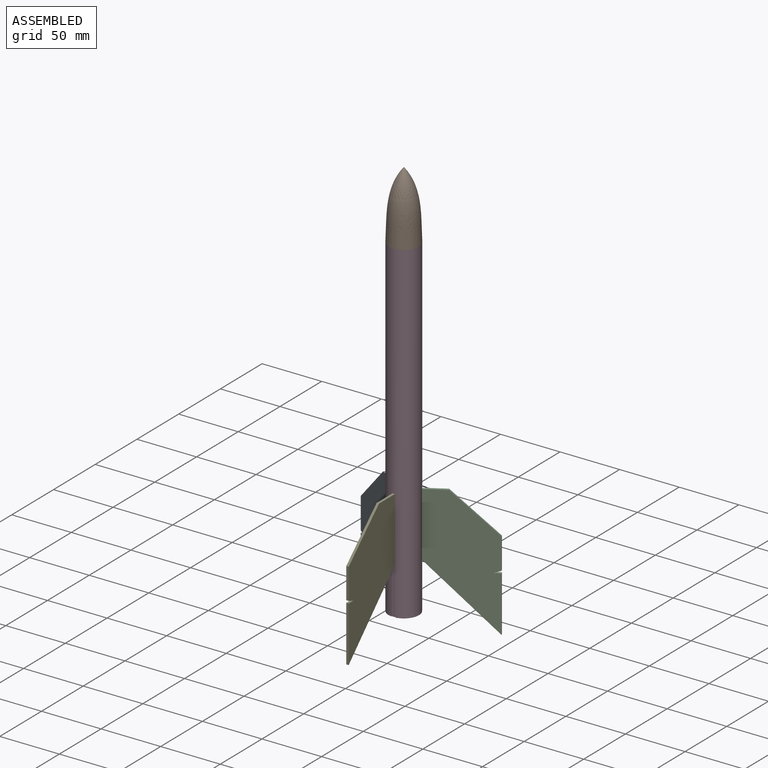
[diagram: assembled view]
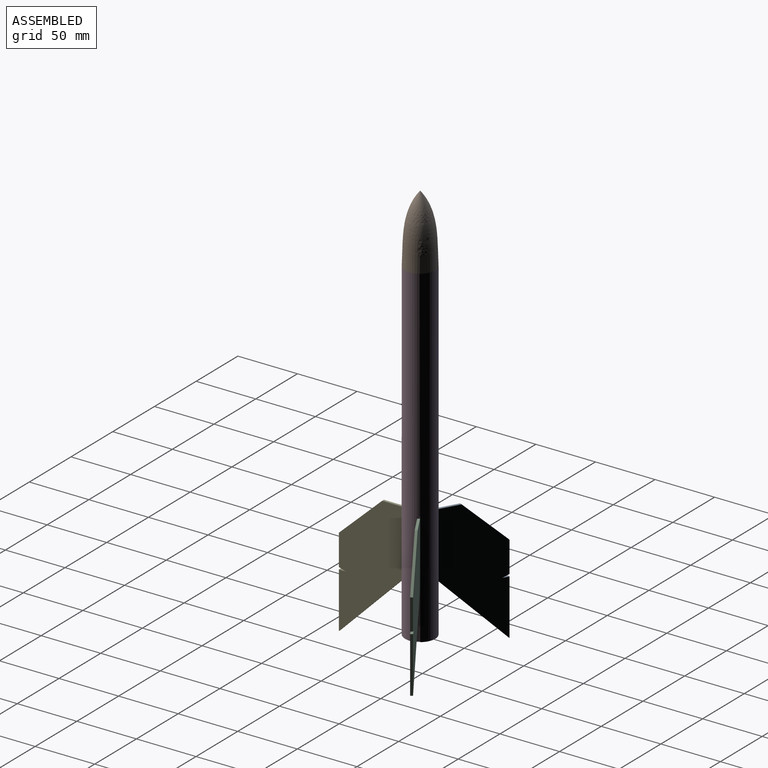
[diagram: assembled view, second angle]
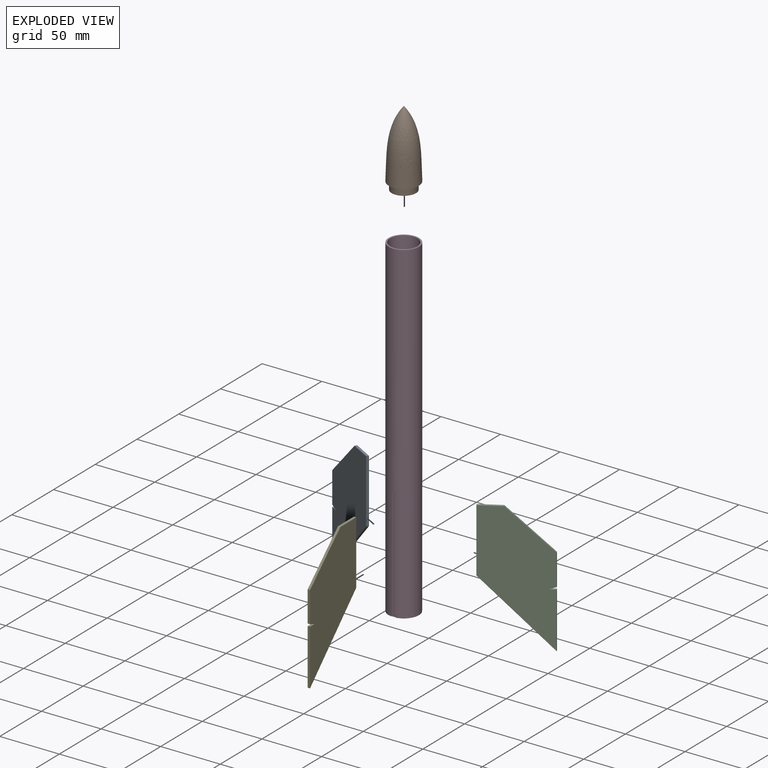
[diagram: exploded view]
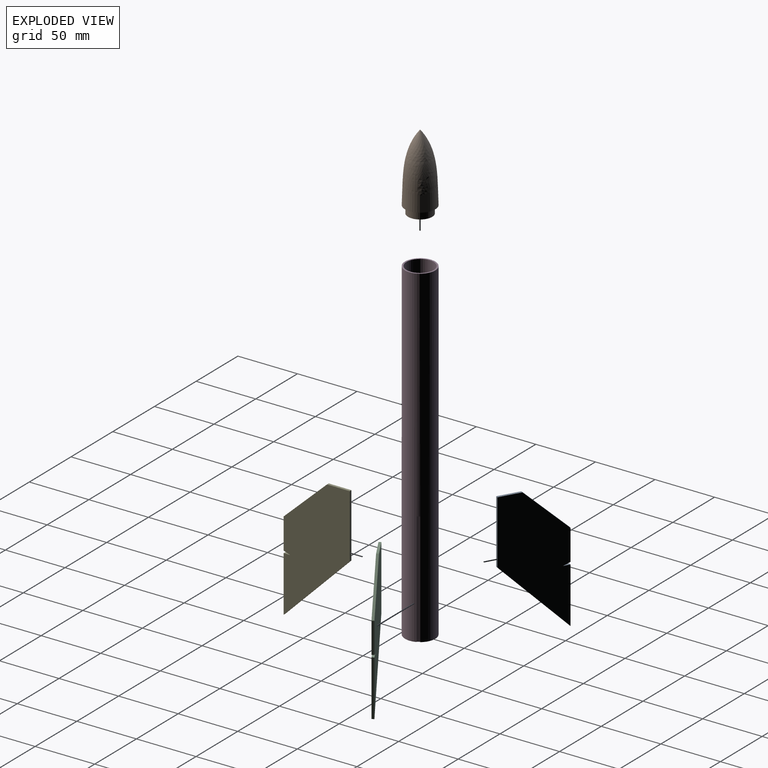
[diagram: exploded view, second angle]
ASSEMBLY  parts=5 mates=4
PART A: 10 faces, bbox 55.4x2x108.5 mm
  f0: plane 53.34x2.03mm, normal (-1,0,0), area 108.4mm2, adj f1,f7,f8,f9
  f1: plane 55.43x55.21mm, normal (-0.71,0,-0.71), area 159mm2, adj f0,f2,f8,f9
  f2: plane 46.74x2.03mm, normal (1,0,0), area 95mm2, adj f1,f3,f8,f9
  f3: plane 5.59x2.03mm, normal (0,0,1), area 11.4mm2, adj f2,f4,f8,f9
  f4: plane 5.59x2.03mm, normal (0.32,0,-0.95), area 12mm2, adj f3,f5,f8,f9
  f5: plane 25.91x2.03mm, normal (1,0,0), area 52.6mm2, adj f4,f6,f8,f9
  f6: plane 36.38x33.98mm, normal (0.68,0,0.73), area 101.2mm2, adj f5,f7,f8,f9
  f7: plane 19.05x2.03mm, normal (0,0,1), area 38.7mm2, adj f0,f6,f8,f9
  f8: plane 108.55x55.43mm, normal (0,-1,0), area 3863.1mm2, adj f0,f1,f2,f3,f4,f5,f6,f7
  f9: plane 108.55x55.43mm, normal (0,1,0), area 3863.1mm2, adj f0,f1,f2,f3,f4,f5,f6,f7
PART B: 4 faces, bbox 25.4x25.4x63.5 mm
  f0: plane 20.32x20.32mm, normal (0,0,-1), area 324.3mm2, adj f1
  f1: cylinder r=10.16mm len=20.32mm, axis (0,0,-1), area 405.4mm2, adj f0,f2
  f2: plane 25.4x25.4mm, normal (0,0,-1), area 182.4mm2, adj f1,f3
  f3: revolved ~57.15x25.4mm, area 3557.7mm2, adj f2
PART C: same geometry as A
PART D: 17 faces, bbox 25.4x25.4x279.4 mm
  f0: plane 25.4x25.27mm, normal (0,0,-1), area 90.9mm2, adj f1,f2,f4,f5,f6,f7,f9,f10
  f1: cylinder r=11.43mm len=279.4mm, axis (0,0,-1), area 20065.6mm2, adj f0,f3
  f2: cylinder r=12.7mm len=279.4mm, axis (0,0,-1), area 21412.2mm2, adj f0,f3,f6,f7,f8,f10,f11,f12
  f3: plane 25.4x25.4mm, normal (0,0,1), area 96.3mm2, adj f1,f2
  f4: plane 95.25x1.18mm, normal (0.87,0.5,0), area 130.1mm2, adj f0,f5,f7,f8
  f5: plane 95.25x1.07mm, normal (0.88,0.47,0), area 115mm2, adj f0,f4,f6,f8
  f6: plane 95.25x0.42mm, normal (0.5,-0.87,0), area 45.9mm2, adj f0,f2,f5,f8
  f7: plane 95.25x0.44mm, normal (-0.5,0.87,0), area 48.5mm2, adj f0,f2,f4,f8
  f8: plane 2.49x1.69mm, normal (0,0,-1), area 1.4mm2, adj f2,f4,f5,f6,f7
  f9: plane 95.25x3.71mm, normal (0,-1,0), area 353.4mm2, adj f0,f10,f11,f12
  f10: plane 95.25x0.47mm, normal (-1,0,0), area 45mm2, adj f0,f2,f9,f12
  f11: plane 95.25x0.47mm, normal (1,0,0), area 44.3mm2, adj f0,f2,f9,f12
  f12: plane 3.71x0.6mm, normal (0,0,-1), area 2.1mm2, adj f2,f9,f10,f11
  f13: plane 95.25x0.53mm, normal (-0.52,-0.85,0), area 58.6mm2, adj f0,f2,f14,f16
  f14: plane 95.25x2.55mm, normal (-0.87,0.5,0), area 280.8mm2, adj f0,f13,f15,f16
  f15: plane 95.25x0.49mm, normal (0.5,0.87,0), area 53.4mm2, adj f0,f2,f14,f16
  f16: plane 2.87x1.96mm, normal (0,0,-1), area 1.9mm2, adj f2,f13,f14,f15
PART E: same geometry as A
PLACE A rot(axis=(0,0,1),150deg) t=(-74.2,43.76,-42.59)mm
PLACE B t=(-63.16,38.84,246.3)mm
PLACE C rot(axis=(0,0,1),30deg) t=(-53.17,45.78,-41.95)mm
PLACE D t=(-63.16,38.84,-26.75)mm fixed
PLACE E rot(axis=(0,0,-1),90deg) t=(-62.17,26.74,-41.95)mm
MATE fastened B.f1 <-> D.f1  axis (0,0,-1) through (-63.16,38.84,246.3)mm
MATE fastened A.f0 <-> D.f14  axis (0.87,-0.5,0) through (-73.69,44.64,39.29)mm
MATE fastened C.f0 <-> D.f4  axis (-0.87,-0.5,0) through (-52.66,44.9,39.93)mm
MATE fastened E.f0 <-> D.f9  axis (0,1,0) through (-63.18,26.74,39.93)mm
